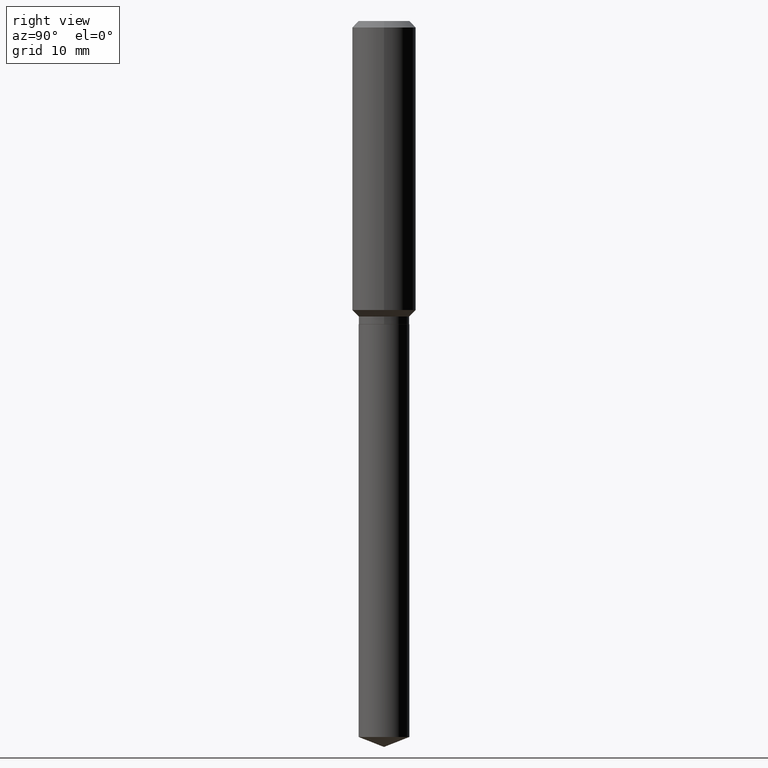
[diagram: clean part render]
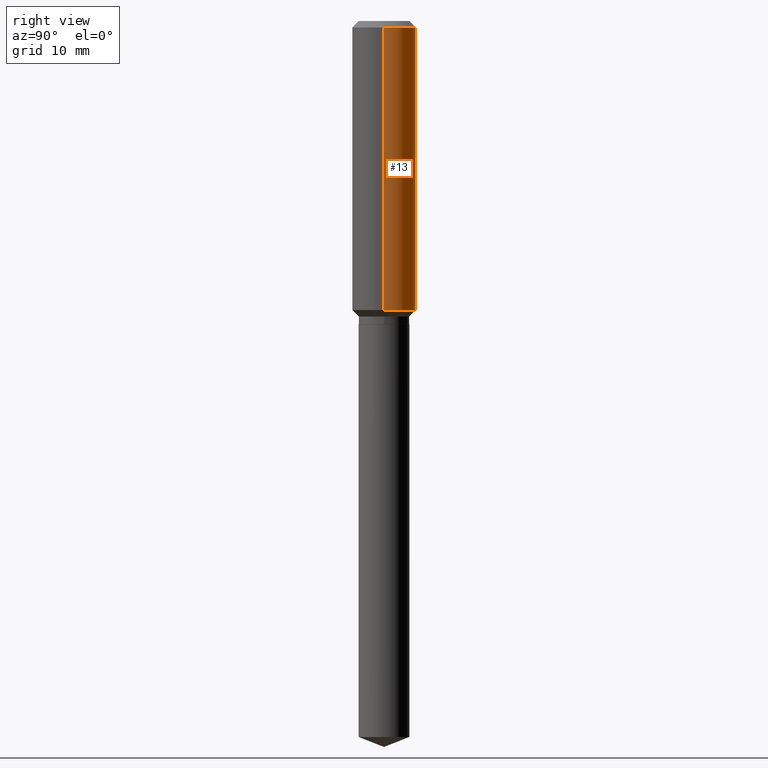
[diagram: same view with one face highlighted and labeled with its STEP entity id]
A machine part, right view. The second image highlights one B-rep face of the part: STEP entity #13.
In plain terms, the highlighted cylindrical surface (edge-blend (fillet) strip) has radius 4.0005 mm, axis along (-0, 0, 1).
Its self-contained STEP definition (entity closure, byte-faithful):
#13 = ADVANCED_FACE ( 'NONE', ( #462 ), #449, .T. ) ;
#18 = DIRECTION ( 'NONE',  ( 1.000000000000000000, -6.982962677686267499E-15, 0.000000000000000000 ) ) ;
#29 = ORIENTED_EDGE ( 'NONE', *, *, #237, .T. ) ;
#33 = AXIS2_PLACEMENT_3D ( 'NONE', #168, #393, #141 ) ;
#47 = VERTEX_POINT ( 'NONE', #236 ) ;
#59 = CARTESIAN_POINT ( 'NONE',  ( 0.1575000000000000011, -1.209798283909146741E-15, -0.03150000000000018757 ) ) ;
#99 = VECTOR ( 'NONE', #150, 39.37007874015748143 ) ;
#106 = ORIENTED_EDGE ( 'NONE', *, *, #112, .F. ) ;
#112 = EDGE_CURVE ( 'NONE', #215, #411, #444, .T. ) ;
#113 = DIRECTION ( 'NONE',  ( -2.445468806185136877E-29, 3.491481338843145188E-15, 1.000000000000000000 ) ) ;
#126 = ORIENTED_EDGE ( 'NONE', *, *, #321, .T. ) ;
#138 = DIRECTION ( 'NONE',  ( -2.445468806185136597E-29, 3.491481338843145583E-15, 1.000000000000000000 ) ) ;
#140 = EDGE_LOOP ( 'NONE', ( #29, #126, #106, #292 ) ) ;
#141 = DIRECTION ( 'NONE',  ( 1.000000000000000000, -6.982962677686265922E-15, 0.000000000000000000 ) ) ;
#150 = DIRECTION ( 'NONE',  ( -2.445468806185136877E-29, 3.491481338843145188E-15, 1.000000000000000000 ) ) ;
#154 = CARTESIAN_POINT ( 'NONE',  ( 0.000000000000000000, 0.000000000000000000, 0.000000000000000000 ) ) ;
#168 = CARTESIAN_POINT ( 'NONE',  ( 7.703226739483226095E-31, -1.099816621735597415E-16, -0.03150000000000018757 ) ) ;
#209 = VECTOR ( 'NONE', #113, 39.37007874015748143 ) ;
#212 = CARTESIAN_POINT ( 'NONE',  ( 3.487238517620005590E-29, -4.978852389190326971E-15, -1.426000000000000378 ) ) ;
#215 = VERTEX_POINT ( 'NONE', #59 ) ;
#223 = CARTESIAN_POINT ( 'NONE',  ( -0.1575000000000000844, 1.119104808822158392E-15, -7.747322767151481189E-30 ) ) ;
#236 = CARTESIAN_POINT ( 'NONE',  ( 0.1575000000000001676, -6.078669010925914451E-15, -1.426000000000000378 ) ) ;
#237 = EDGE_CURVE ( 'NONE', #47, #388, #316, .T. ) ;
#252 = CARTESIAN_POINT ( 'NONE',  ( 0.1575000000000000844, -1.099816621735587677E-15, 7.679978421878603638E-30 ) ) ;
#268 = AXIS2_PLACEMENT_3D ( 'NONE', #154, #271, #303 ) ;
#271 = DIRECTION ( 'NONE',  ( -2.445468806185136597E-29, 3.491481338843145583E-15, 1.000000000000000000 ) ) ;
#292 = ORIENTED_EDGE ( 'NONE', *, *, #326, .F. ) ;
#303 = DIRECTION ( 'NONE',  ( 1.000000000000000000, -6.982962677686267499E-15, 4.876176775795936353E-29 ) ) ;
#316 = CIRCLE ( 'NONE', #382, 0.1575000000000001676 ) ;
#321 = EDGE_CURVE ( 'NONE', #388, #411, #415, .T. ) ;
#326 = EDGE_CURVE ( 'NONE', #47, #215, #488, .T. ) ;
#372 = CARTESIAN_POINT ( 'NONE',  ( -0.1575000000000001676, -3.859747580368167001E-15, -1.426000000000000378 ) ) ;
#382 = AXIS2_PLACEMENT_3D ( 'NONE', #212, #138, #18 ) ;
#388 = VERTEX_POINT ( 'NONE', #372 ) ;
#393 = DIRECTION ( 'NONE',  ( -2.445468806185136597E-29, 3.491481338843145583E-15, 1.000000000000000000 ) ) ;
#411 = VERTEX_POINT ( 'NONE', #448 ) ;
#415 = LINE ( 'NONE', #223, #99 ) ;
#444 = CIRCLE ( 'NONE', #33, 0.1575000000000000011 ) ;
#448 = CARTESIAN_POINT ( 'NONE',  ( -0.1575000000000000011, -1.425312216859784822E-15, -0.03150000000000018757 ) ) ;
#449 = CYLINDRICAL_SURFACE ( 'NONE', #268, 0.1575000000000000844 ) ;
#462 = FACE_OUTER_BOUND ( 'NONE', #140, .T. ) ;
#488 = LINE ( 'NONE', #252, #209 ) ;